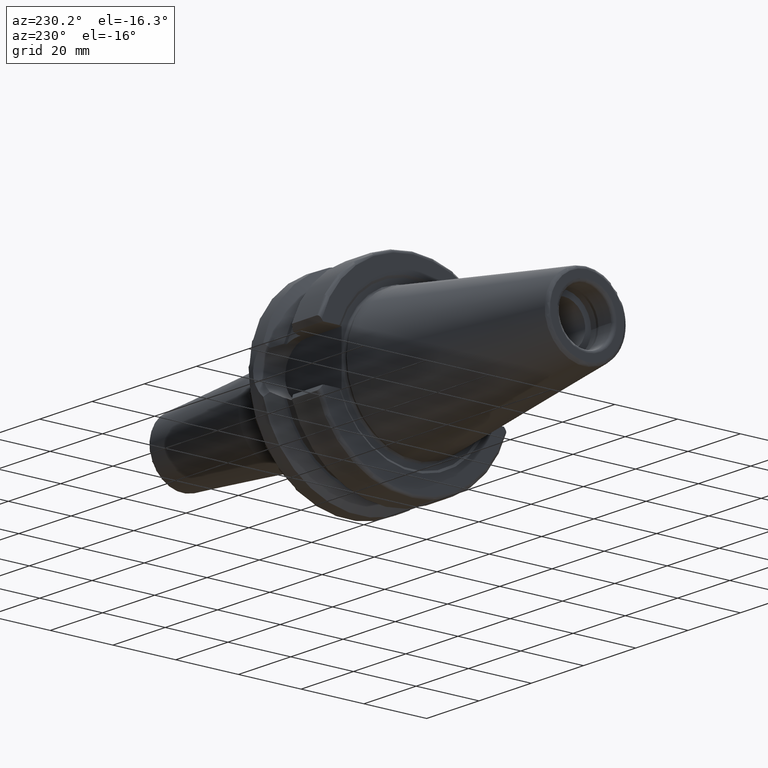
[diagram: clean part render]
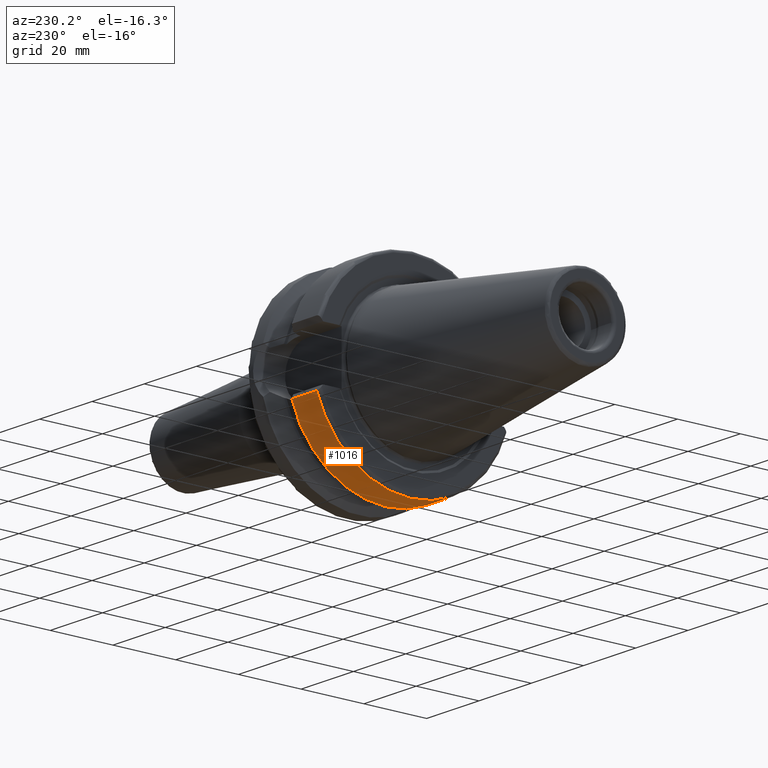
[diagram: same view with one face highlighted and labeled with its STEP entity id]
A machine part, auxiliary view. The second image highlights one B-rep face of the part: STEP entity #1016.
In plain terms, the highlighted cylindrical surface (partial cylindrical patch) has radius 31.5 mm, axis along (1, 0, 0).
Its self-contained STEP definition (entity closure, byte-faithful):
#69=LINE('',#1732,#127);
#72=LINE('',#1744,#130);
#127=VECTOR('',#1305,10.);
#130=VECTOR('',#1312,10.);
#183=CYLINDRICAL_SURFACE('',#1126,31.5);
#240=FACE_OUTER_BOUND('',#305,.T.);
#305=EDGE_LOOP('',(#756,#757,#758,#759));
#377=CIRCLE('',#1127,31.5);
#378=CIRCLE('',#1128,31.5000000000001);
#448=VERTEX_POINT('',#1720);
#449=VERTEX_POINT('',#1731);
#452=VERTEX_POINT('',#1741);
#453=VERTEX_POINT('',#1743);
#563=EDGE_CURVE('',#448,#449,#69,.T.);
#567=EDGE_CURVE('',#448,#452,#377,.T.);
#568=EDGE_CURVE('',#453,#452,#72,.T.);
#569=EDGE_CURVE('',#449,#453,#378,.T.);
#756=ORIENTED_EDGE('',*,*,#563,.F.);
#757=ORIENTED_EDGE('',*,*,#567,.T.);
#758=ORIENTED_EDGE('',*,*,#568,.F.);
#759=ORIENTED_EDGE('',*,*,#569,.F.);
#1016=ADVANCED_FACE('',(#240),#183,.T.);
#1126=AXIS2_PLACEMENT_3D('',#1740,#1308,#1309);
#1127=AXIS2_PLACEMENT_3D('',#1742,#1310,#1311);
#1128=AXIS2_PLACEMENT_3D('',#1745,#1313,#1314);
#1305=DIRECTION('',(1.,0.,0.));
#1308=DIRECTION('center_axis',(1.,0.,0.));
#1309=DIRECTION('ref_axis',(0.,1.,0.));
#1310=DIRECTION('center_axis',(1.,0.,0.));
#1311=DIRECTION('ref_axis',(0.,0.,-1.));
#1312=DIRECTION('',(-1.,0.,0.));
#1313=DIRECTION('center_axis',(1.,0.,0.));
#1314=DIRECTION('ref_axis',(0.,0.,-1.));
#1720=CARTESIAN_POINT('',(1.99999999999999,-30.0059801089944,-9.58598757033586));
#1731=CARTESIAN_POINT('',(11.5690363073381,-30.0059801089944,-9.58598757033588));
#1732=CARTESIAN_POINT('',(6.78451815366905,-30.0059801089944,-9.58598757033587));
#1740=CARTESIAN_POINT('Origin',(6.78451815366905,0.,0.));
#1741=CARTESIAN_POINT('',(1.99999999999999,30.0059801089944,-9.58598757033586));
#1742=CARTESIAN_POINT('Origin',(1.99999999999999,0.,0.));
#1743=CARTESIAN_POINT('',(11.5690363073381,30.0059801089944,-9.58598757033588));
#1744=CARTESIAN_POINT('',(6.78451815366905,30.0059801089944,-9.58598757033587));
#1745=CARTESIAN_POINT('Origin',(11.5690363073381,0.,0.));